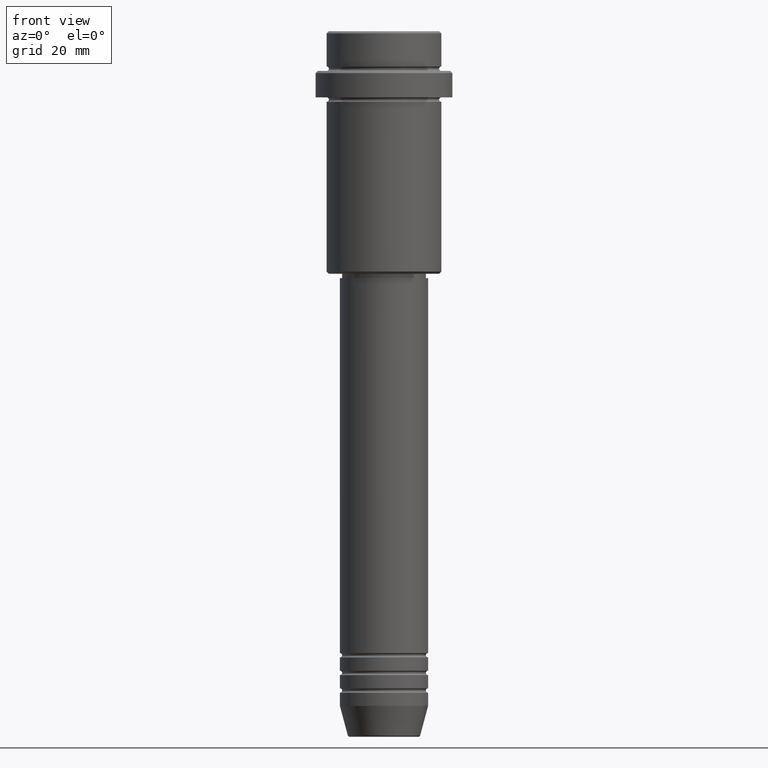
[diagram: clean part render]
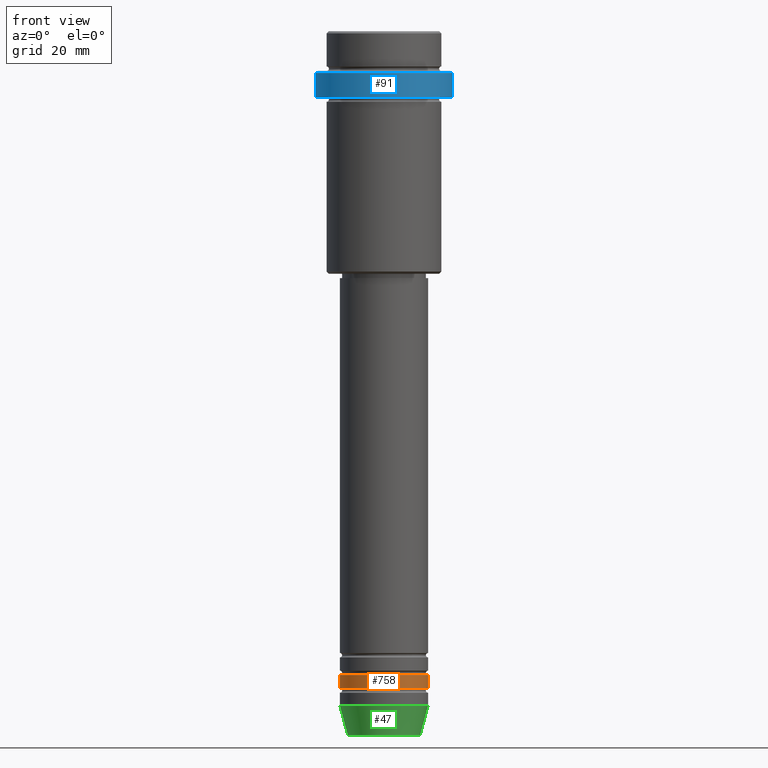
[diagram: same view with three faces highlighted in distinct colors, each labeled with its STEP entity id]
A machine part, front view with three faces highlighted in distinct colors.
Their STEP definitions:

[orange] entity #758 — the highlighted cylindrical surface (partial cylindrical patch) has radius 10 mm, axis along (-0, -0, 1).
#33 = LINE ( 'NONE', #353, #309 ) ;
#135 = CARTESIAN_POINT ( 'NONE',  ( -10.00000000000000000, 1.224646799147353256E-15, -145.9999999999999147 ) ) ;
#151 = CARTESIAN_POINT ( 'NONE',  ( 10.00000000000000000, 0.000000000000000000, -145.9999999999999147 ) ) ;
#180 = CIRCLE ( 'NONE', #1040, 10.00000000000000000 ) ;
#211 = EDGE_CURVE ( 'NONE', #929, #484, #180, .T. ) ;
#213 = CARTESIAN_POINT ( 'NONE',  ( 0.000000000000000000, 0.000000000000000000, -148.9999999999999147 ) ) ;
#227 = DIRECTION ( 'NONE',  ( -0.000000000000000000, -0.000000000000000000, 1.000000000000000000 ) ) ;
#281 = DIRECTION ( 'NONE',  ( -0.000000000000000000, -0.000000000000000000, 1.000000000000000000 ) ) ;
#309 = VECTOR ( 'NONE', #561, 1000.000000000000000 ) ;
#342 = ORIENTED_EDGE ( 'NONE', *, *, #529, .F. ) ;
#353 = CARTESIAN_POINT ( 'NONE',  ( 10.00000000000000000, 0.000000000000000000, 0.000000000000000000 ) ) ;
#354 = VERTEX_POINT ( 'NONE', #135 ) ;
#359 = ORIENTED_EDGE ( 'NONE', *, *, #211, .T. ) ;
#365 = EDGE_LOOP ( 'NONE', ( #342, #359, #470, #728 ) ) ;
#394 = CARTESIAN_POINT ( 'NONE',  ( 10.00000000000000000, 0.000000000000000000, -148.9999999999999147 ) ) ;
#402 = VERTEX_POINT ( 'NONE', #151 ) ;
#425 = DIRECTION ( 'NONE',  ( 1.000000000000000000, 0.000000000000000000, 0.000000000000000000 ) ) ;
#470 = ORIENTED_EDGE ( 'NONE', *, *, #735, .T. ) ;
#484 = VERTEX_POINT ( 'NONE', #394 ) ;
#529 = EDGE_CURVE ( 'NONE', #929, #354, #1380, .T. ) ;
#536 = DIRECTION ( 'NONE',  ( -0.000000000000000000, -0.000000000000000000, 1.000000000000000000 ) ) ;
#561 = DIRECTION ( 'NONE',  ( -0.000000000000000000, -0.000000000000000000, 1.000000000000000000 ) ) ;
#571 = CYLINDRICAL_SURFACE ( 'NONE', #1244, 10.00000000000000000 ) ;
#575 = CARTESIAN_POINT ( 'NONE',  ( 0.000000000000000000, 0.000000000000000000, 0.000000000000000000 ) ) ;
#661 = FACE_OUTER_BOUND ( 'NONE', #365, .T. ) ;
#698 = CIRCLE ( 'NONE', #1393, 10.00000000000000000 ) ;
#714 = CARTESIAN_POINT ( 'NONE',  ( -10.00000000000000000, 1.224646799147353256E-15, -148.9999999999999147 ) ) ;
#728 = ORIENTED_EDGE ( 'NONE', *, *, #1082, .F. ) ;
#735 = EDGE_CURVE ( 'NONE', #484, #402, #33, .T. ) ;
#758 = ADVANCED_FACE ( 'NONE', ( #661 ), #571, .T. ) ;
#847 = DIRECTION ( 'NONE',  ( 1.000000000000000000, 0.000000000000000000, 0.000000000000000000 ) ) ;
#929 = VERTEX_POINT ( 'NONE', #714 ) ;
#951 = CARTESIAN_POINT ( 'NONE',  ( 0.000000000000000000, 0.000000000000000000, -145.9999999999999147 ) ) ;
#968 = DIRECTION ( 'NONE',  ( -0.000000000000000000, -0.000000000000000000, 1.000000000000000000 ) ) ;
#1040 = AXIS2_PLACEMENT_3D ( 'NONE', #213, #536, #425 ) ;
#1082 = EDGE_CURVE ( 'NONE', #354, #402, #698, .T. ) ;
#1243 = VECTOR ( 'NONE', #281, 1000.000000000000000 ) ;
#1244 = AXIS2_PLACEMENT_3D ( 'NONE', #575, #227, #1331 ) ;
#1331 = DIRECTION ( 'NONE',  ( 1.000000000000000000, 0.000000000000000000, 0.000000000000000000 ) ) ;
#1354 = CARTESIAN_POINT ( 'NONE',  ( -10.00000000000000000, 1.224646799147353256E-15, 0.000000000000000000 ) ) ;
#1380 = LINE ( 'NONE', #1354, #1243 ) ;
#1393 = AXIS2_PLACEMENT_3D ( 'NONE', #951, #968, #847 ) ;

[blue] entity #91 — the highlighted cylindrical surface (partial cylindrical patch) has radius 15.5 mm, axis along (-0, -0, 1).
#22 = LINE ( 'NONE', #581, #1293 ) ;
#35 = DIRECTION ( 'NONE',  ( -0.000000000000000000, -0.000000000000000000, 1.000000000000000000 ) ) ;
#61 = CYLINDRICAL_SURFACE ( 'NONE', #450, 15.50000000000000000 ) ;
#91 = ADVANCED_FACE ( 'NONE', ( #1034 ), #61, .T. ) ;
#128 = AXIS2_PLACEMENT_3D ( 'NONE', #1318, #473, #453 ) ;
#168 = CARTESIAN_POINT ( 'NONE',  ( -15.50000000000000000, 1.898202538678397557E-15, -15.00000000000000000 ) ) ;
#176 = CIRCLE ( 'NONE', #1316, 15.50000000000000000 ) ;
#202 = ORIENTED_EDGE ( 'NONE', *, *, #383, .T. ) ;
#241 = VERTEX_POINT ( 'NONE', #439 ) ;
#336 = CARTESIAN_POINT ( 'NONE',  ( 15.50000000000000000, 0.000000000000000000, 0.000000000000000000 ) ) ;
#383 = EDGE_CURVE ( 'NONE', #241, #1328, #1014, .T. ) ;
#395 = DIRECTION ( 'NONE',  ( -0.000000000000000000, -0.000000000000000000, 1.000000000000000000 ) ) ;
#438 = CARTESIAN_POINT ( 'NONE',  ( 0.000000000000000000, 0.000000000000000000, -9.500000000000026645 ) ) ;
#439 = CARTESIAN_POINT ( 'NONE',  ( 15.50000000000000000, 0.000000000000000000, -15.00000000000000000 ) ) ;
#450 = AXIS2_PLACEMENT_3D ( 'NONE', #502, #395, #1373 ) ;
#453 = DIRECTION ( 'NONE',  ( 1.000000000000000000, 0.000000000000000000, 0.000000000000000000 ) ) ;
#473 = DIRECTION ( 'NONE',  ( -0.000000000000000000, -0.000000000000000000, 1.000000000000000000 ) ) ;
#502 = CARTESIAN_POINT ( 'NONE',  ( 0.000000000000000000, 0.000000000000000000, 0.000000000000000000 ) ) ;
#506 = VERTEX_POINT ( 'NONE', #168 ) ;
#581 = CARTESIAN_POINT ( 'NONE',  ( -15.50000000000000000, 1.898202538678397557E-15, 0.000000000000000000 ) ) ;
#638 = EDGE_CURVE ( 'NONE', #1328, #782, #176, .T. ) ;
#658 = DIRECTION ( 'NONE',  ( -0.000000000000000000, -0.000000000000000000, 1.000000000000000000 ) ) ;
#663 = ORIENTED_EDGE ( 'NONE', *, *, #744, .F. ) ;
#744 = EDGE_CURVE ( 'NONE', #506, #782, #22, .T. ) ;
#774 = EDGE_CURVE ( 'NONE', #506, #241, #775, .T. ) ;
#775 = CIRCLE ( 'NONE', #128, 15.50000000000000000 ) ;
#782 = VERTEX_POINT ( 'NONE', #904 ) ;
#857 = DIRECTION ( 'NONE',  ( 1.000000000000000000, 0.000000000000000000, 0.000000000000000000 ) ) ;
#904 = CARTESIAN_POINT ( 'NONE',  ( -15.50000000000000000, 1.898202538678397557E-15, -9.500000000000026645 ) ) ;
#915 = CARTESIAN_POINT ( 'NONE',  ( 15.50000000000000000, 0.000000000000000000, -9.500000000000026645 ) ) ;
#1014 = LINE ( 'NONE', #336, #1132 ) ;
#1034 = FACE_OUTER_BOUND ( 'NONE', #1370, .T. ) ;
#1103 = ORIENTED_EDGE ( 'NONE', *, *, #774, .T. ) ;
#1132 = VECTOR ( 'NONE', #35, 1000.000000000000000 ) ;
#1247 = ORIENTED_EDGE ( 'NONE', *, *, #638, .T. ) ;
#1293 = VECTOR ( 'NONE', #658, 1000.000000000000000 ) ;
#1310 = DIRECTION ( 'NONE',  ( 0.000000000000000000, 0.000000000000000000, -1.000000000000000000 ) ) ;
#1316 = AXIS2_PLACEMENT_3D ( 'NONE', #438, #1310, #857 ) ;
#1318 = CARTESIAN_POINT ( 'NONE',  ( 0.000000000000000000, 0.000000000000000000, -15.00000000000000000 ) ) ;
#1328 = VERTEX_POINT ( 'NONE', #915 ) ;
#1370 = EDGE_LOOP ( 'NONE', ( #663, #1103, #202, #1247 ) ) ;
#1373 = DIRECTION ( 'NONE',  ( 1.000000000000000000, 0.000000000000000000, 0.000000000000000000 ) ) ;

[green] entity #47 — the highlighted conical surface has half-angle 15 deg.
#37 = CONICAL_SURFACE ( 'NONE', #880, 10.00000000000000000, 0.2617993877991502960 ) ;
#47 = ADVANCED_FACE ( 'NONE', ( #844 ), #37, .T. ) ;
#64 = CIRCLE ( 'NONE', #1069, 8.223655072137200150 ) ;
#84 = CARTESIAN_POINT ( 'NONE',  ( 0.000000000000000000, 0.000000000000000000, -153.0000000000000000 ) ) ;
#98 = CARTESIAN_POINT ( 'NONE',  ( 10.00000000000000000, 0.000000000000000000, -153.0000000000000000 ) ) ;
#137 = DIRECTION ( 'NONE',  ( -0.000000000000000000, -0.000000000000000000, 1.000000000000000000 ) ) ;
#242 = LINE ( 'NONE', #991, #430 ) ;
#248 = CARTESIAN_POINT ( 'NONE',  ( 10.00000000000000000, 0.000000000000000000, -153.0000000000000000 ) ) ;
#343 = VERTEX_POINT ( 'NONE', #683 ) ;
#351 = EDGE_CURVE ( 'NONE', #826, #559, #805, .T. ) ;
#400 = EDGE_CURVE ( 'NONE', #1281, #826, #64, .T. ) ;
#405 = ORIENTED_EDGE ( 'NONE', *, *, #707, .F. ) ;
#430 = VECTOR ( 'NONE', #889, 1000.000000000000114 ) ;
#559 = VERTEX_POINT ( 'NONE', #98 ) ;
#576 = DIRECTION ( 'NONE',  ( 0.2588190451025215721, 0.000000000000000000, 0.9659258262890679791 ) ) ;
#611 = ORIENTED_EDGE ( 'NONE', *, *, #1205, .F. ) ;
#646 = EDGE_LOOP ( 'NONE', ( #611, #905, #685, #405 ) ) ;
#683 = CARTESIAN_POINT ( 'NONE',  ( -10.00000000000000000, 1.224646799147353256E-15, -153.0000000000000000 ) ) ;
#685 = ORIENTED_EDGE ( 'NONE', *, *, #351, .T. ) ;
#707 = EDGE_CURVE ( 'NONE', #343, #559, #923, .T. ) ;
#721 = CARTESIAN_POINT ( 'NONE',  ( 8.223655072137200150, 0.000000000000000000, -159.6294095225512137 ) ) ;
#800 = VECTOR ( 'NONE', #576, 1000.000000000000114 ) ;
#803 = DIRECTION ( 'NONE',  ( 1.000000000000000000, 0.000000000000000000, 0.000000000000000000 ) ) ;
#805 = LINE ( 'NONE', #248, #800 ) ;
#826 = VERTEX_POINT ( 'NONE', #721 ) ;
#844 = FACE_OUTER_BOUND ( 'NONE', #646, .T. ) ;
#880 = AXIS2_PLACEMENT_3D ( 'NONE', #84, #1135, #1027 ) ;
#885 = CARTESIAN_POINT ( 'NONE',  ( 0.000000000000000000, 0.000000000000000000, -159.6294095225512137 ) ) ;
#889 = DIRECTION ( 'NONE',  ( -0.2588190451025215721, 3.169619151431775418E-17, 0.9659258262890679791 ) ) ;
#905 = ORIENTED_EDGE ( 'NONE', *, *, #400, .T. ) ;
#923 = CIRCLE ( 'NONE', #1369, 10.00000000000000000 ) ;
#991 = CARTESIAN_POINT ( 'NONE',  ( -10.00000000000000000, 1.224646799147353256E-15, -153.0000000000000000 ) ) ;
#995 = DIRECTION ( 'NONE',  ( 1.000000000000000000, 0.000000000000000000, 0.000000000000000000 ) ) ;
#1013 = CARTESIAN_POINT ( 'NONE',  ( 0.000000000000000000, 0.000000000000000000, -153.0000000000000000 ) ) ;
#1027 = DIRECTION ( 'NONE',  ( 1.000000000000000000, 0.000000000000000000, 0.000000000000000000 ) ) ;
#1069 = AXIS2_PLACEMENT_3D ( 'NONE', #885, #1347, #995 ) ;
#1135 = DIRECTION ( 'NONE',  ( -0.000000000000000000, -0.000000000000000000, 1.000000000000000000 ) ) ;
#1205 = EDGE_CURVE ( 'NONE', #1281, #343, #242, .T. ) ;
#1259 = CARTESIAN_POINT ( 'NONE',  ( -8.223655072137200150, 1.115877042642912645E-15, -159.6294095225512137 ) ) ;
#1281 = VERTEX_POINT ( 'NONE', #1259 ) ;
#1347 = DIRECTION ( 'NONE',  ( -0.000000000000000000, -0.000000000000000000, 1.000000000000000000 ) ) ;
#1369 = AXIS2_PLACEMENT_3D ( 'NONE', #1013, #137, #803 ) ;